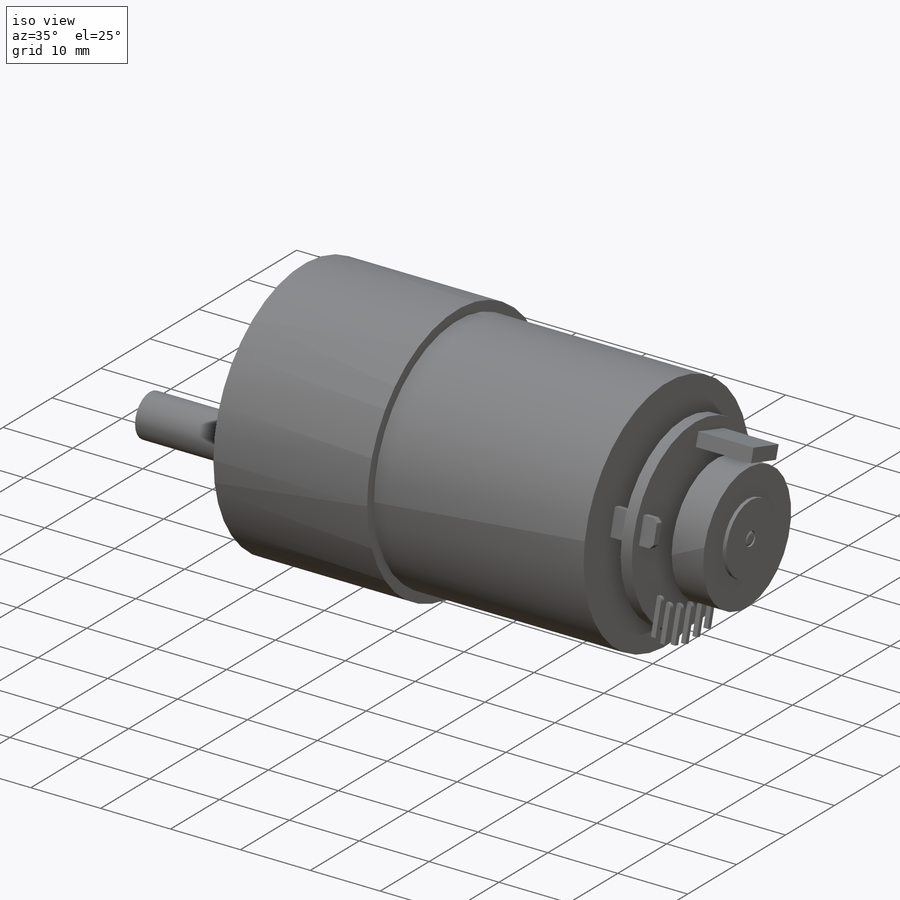
[diagram: iso view]
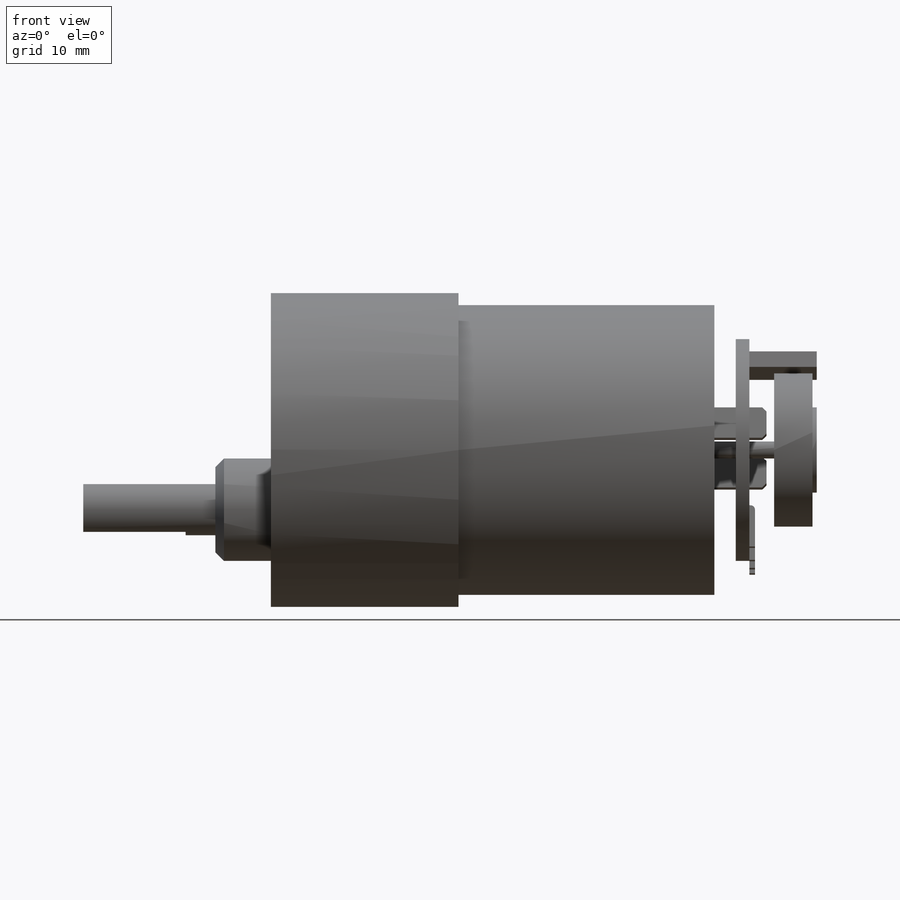
[diagram: front view]
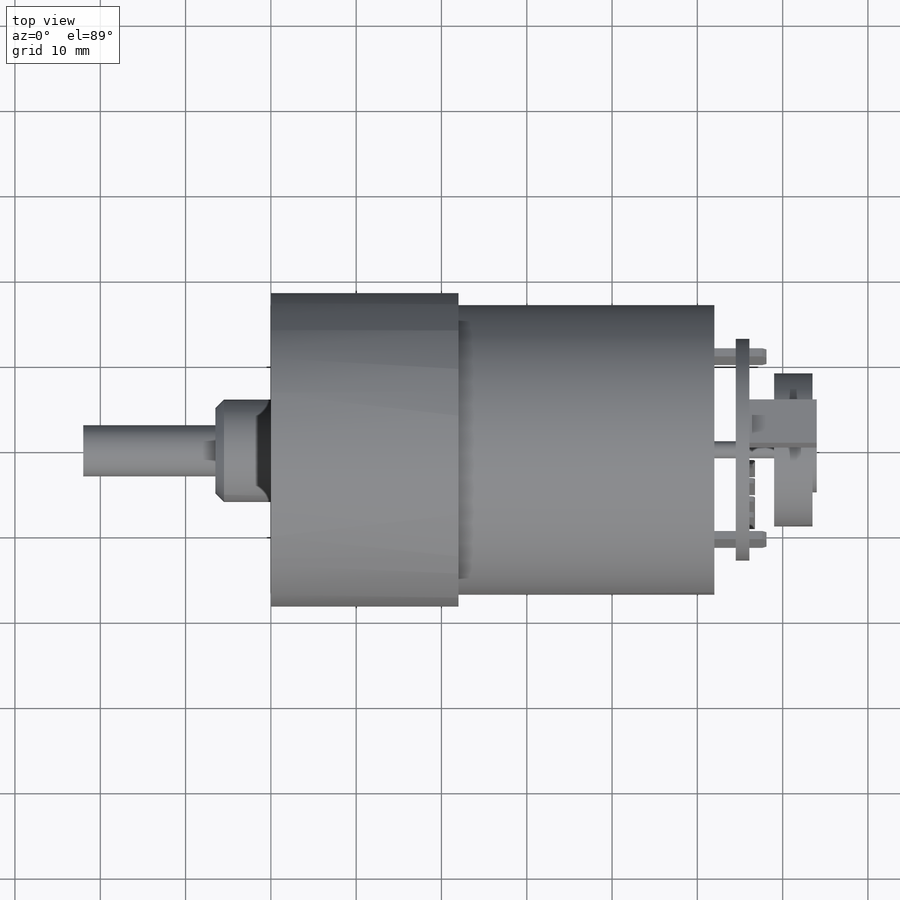
[diagram: top view]
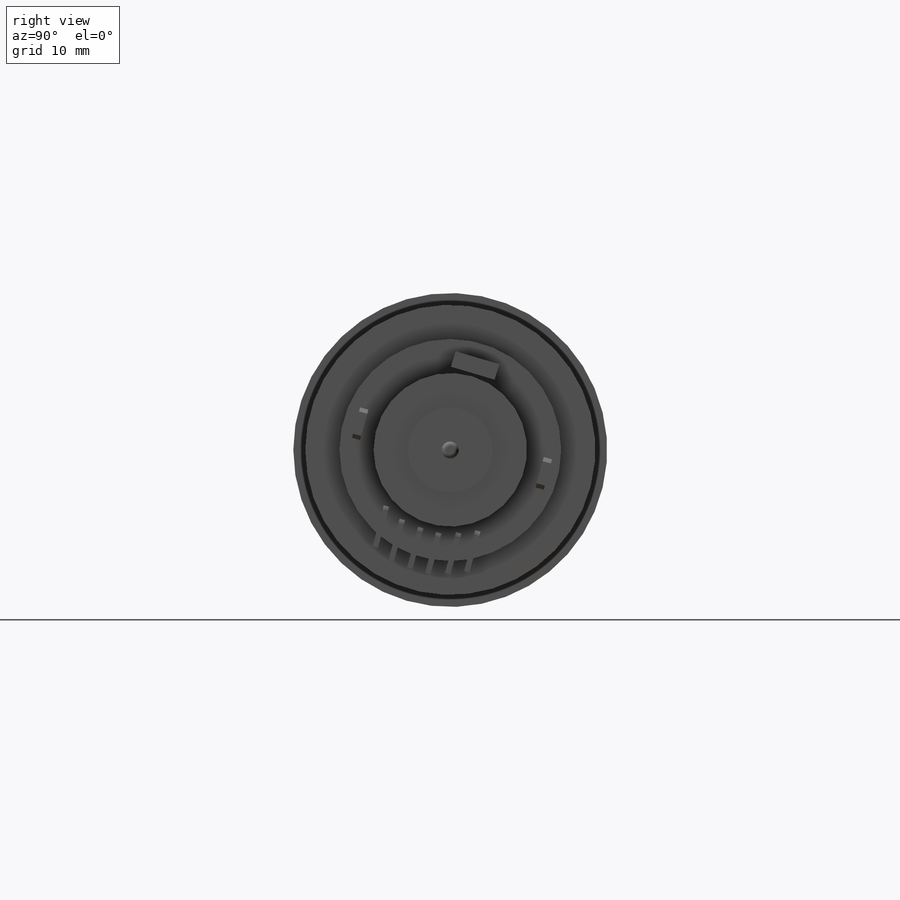
[diagram: right view]
SOLIDWORKS PART (.sldprt)
format: sldprt  version: not decoded by parser v0  size: 495,616 bytes
history: native  units: mm
features: sketch x11, extrude x5, cut_extrude x3, chamfer x2, material x1, revolve x1, pattern_circular x1, fillet x1 (+11 scaffold rows collapsed)
feature tree (36):
  scaffold x11  (default folders/planes/origin — collapsed)
  material  "Pololu 37D"
  sketch  "Sketch1"  dims[c1.D1=22.0mm c1.D2=30.0mm c1.D3=14.0mm c1.D4=18.4mm c1.D5=17.0mm c1.D6=14.0mm c2.D3=12.0mm c2.D6=13.0mm c2.D7=1.0mm c2.D8=1.6mm c2.D9=5.0mm c2.D10=5.0mm c2.D11=9.0mm c3.D3=5.0mm c3.D10=5.0mm c3.D12=12.0mm c3.D13=0.5mm c4.D10=12.0mm c4.D12=0.5mm c4.D13=1.0mm c4.D9=2.5mm c4.D14=7.0mm]
  revolve  "Revolve1"  Angle=360deg
  sketch  "Sketch2"  dims[D2=12.0mm D1=7.0mm]
  extrude  "Boss-Extrude1"  Depth=6.5mm
  sketch  "Sketch3"  dims[D1=6.0mm]
  extrude  "Boss-Extrude2"  Depth=15.5mm
  sketch  "Sketch4"  dims[D2=3.0mm D1=3.0mm]
  cut_extrude  "Cut-Extrude1"  Depth=12mm
  chamfer  "Chamfer1"  Distance=1mm Angle=45deg
  sketch  "Sketch5"  dims[D1=2.46mm D2=15.5mm]
  cut_extrude  "Cut-Extrude2"  Depth=5mm
  pattern_circular  "CirPattern1"  Count=6 Angle=60deg
  sketch  "Sketch6"
  extrude  "Boss-Extrude3"  [1 undecoded]
  sketch  "Sketch7"  dims[D1=1.0mm]
  extrude  "Boss-Extrude4"  Depth=2mm
  chamfer  "Chamfer2"  Distance=0.5mm Angle=45deg
  sketch  "Sketch9"  dims[D1=0.65mm D2=5.0mm]
  extrude  "Boss-Extrude5"  Depth=0.65mm
  fillet  "Fillet1"  Radius=0.5mm
  sketch  "Sketch10"  dims[D1=~2.220193mm]
  sketch  "Sketch13"  dims[D1=0.65mm D2=4.0]
  sketch  "Sketch14"  dims[D1=12.0mm D2=8.0mm D3=0.9mm]
  cut_extrude  "Cut-Extrude3"  Depth=1mm
decode coverage: 22 of 24 modeling features carry decoded parameters
note: ~ marks probable driven/reference dimensions
note: 1 parameter value undecoded
note: suppression state not decoded; provenance and decode notes live in map.json
